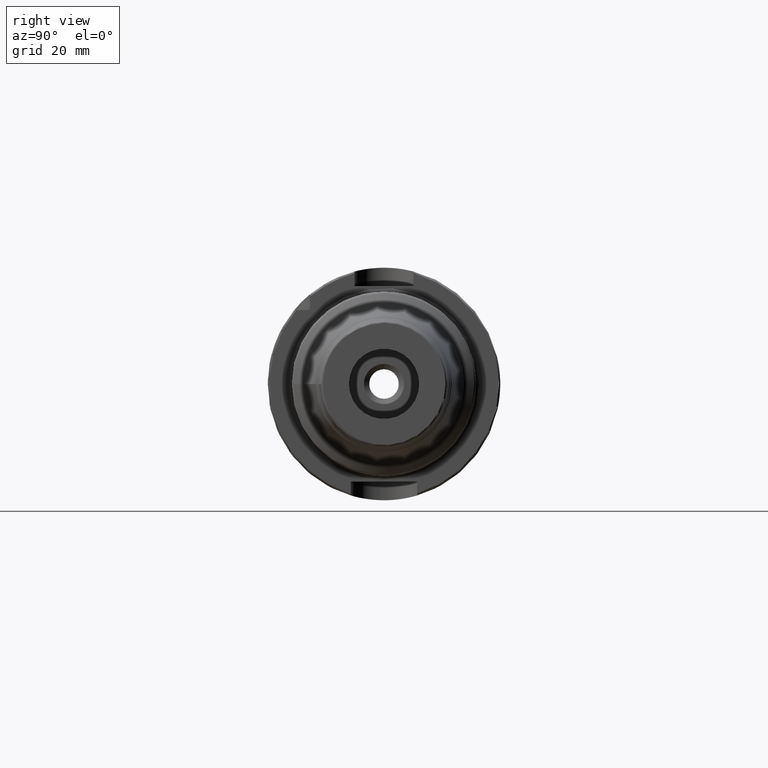
[diagram: clean part render]
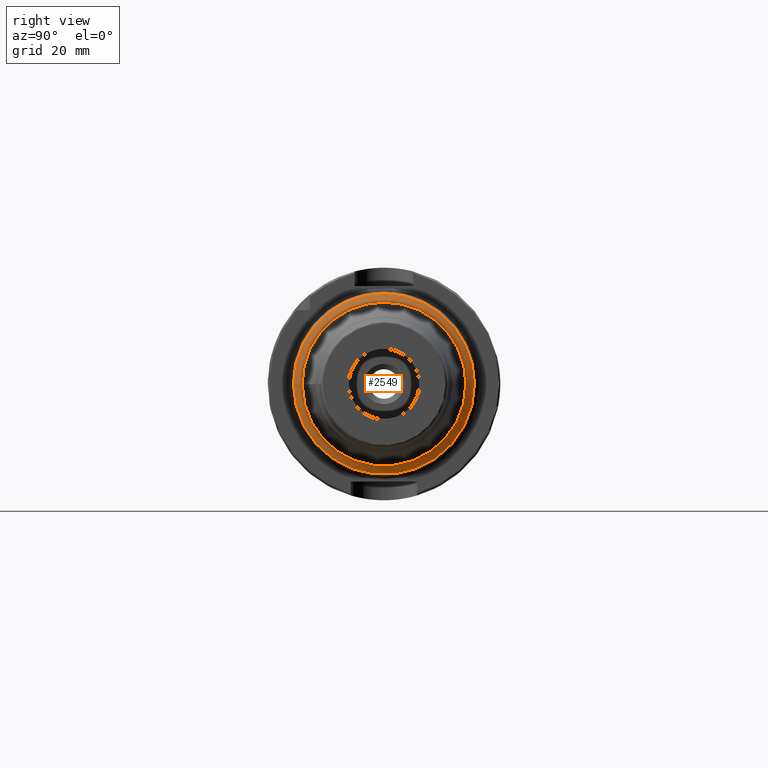
[diagram: same view with one face highlighted and labeled with its STEP entity id]
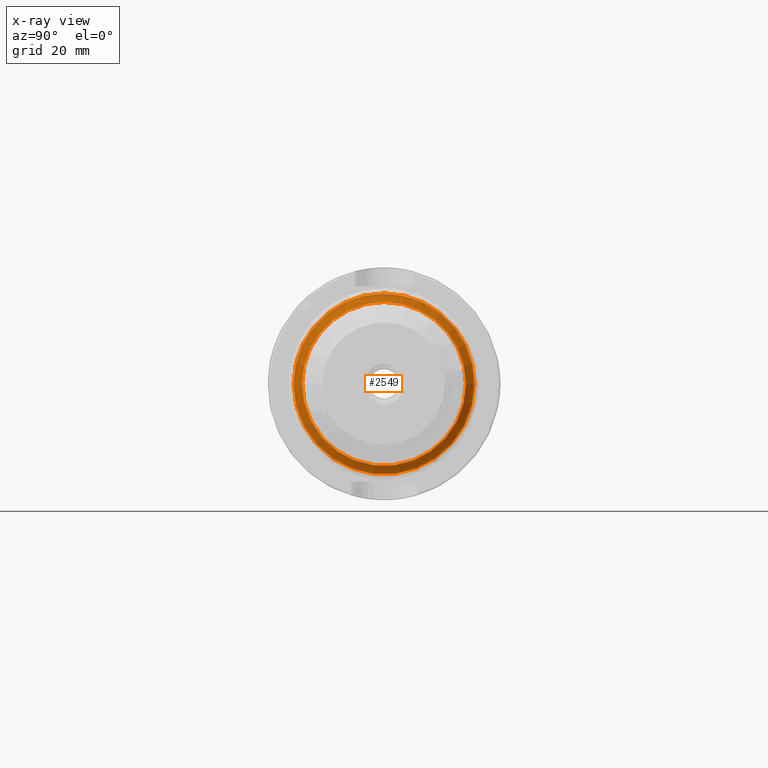
[diagram: x-ray of the same camera — body ghosted, the highlighted face saturated]
A machine part, right view. The second image highlights one B-rep face of the part: STEP entity #2549.
The next image is the same camera in x-ray: the body ghosted, the highlighted face saturated — about 0% of this face is hidden behind the body in this view.
In plain terms, the highlighted conical surface has half-angle 60 deg.
Its self-contained STEP definition (entity closure, byte-faithful):
#240=FACE_OUTER_BOUND('',#376,.T.);
#376=EDGE_LOOP('',(#1836,#1837,#1838,#1839,#1840,#1841,#1842,#1843));
#510=LINE('',#4073,#627);
#627=VECTOR('',#3262,23.3583500677369);
#806=CIRCLE('',#2778,22.1869135644902);
#808=CIRCLE('',#2780,22.1869135644902);
#809=CIRCLE('',#2781,22.1869135644902);
#810=CIRCLE('',#2783,24.5);
#811=CIRCLE('',#2784,24.5);
#812=CIRCLE('',#2785,24.5);
#1019=VERTEX_POINT('',#4064);
#1020=VERTEX_POINT('',#4065);
#1021=VERTEX_POINT('',#4068);
#1022=VERTEX_POINT('',#4072);
#1023=VERTEX_POINT('',#4074);
#1024=VERTEX_POINT('',#4076);
#1331=EDGE_CURVE('',#1019,#1020,#806,.T.);
#1333=EDGE_CURVE('',#1020,#1021,#808,.T.);
#1334=EDGE_CURVE('',#1021,#1019,#809,.T.);
#1335=EDGE_CURVE('',#1021,#1022,#510,.T.);
#1336=EDGE_CURVE('',#1023,#1022,#810,.T.);
#1337=EDGE_CURVE('',#1024,#1023,#811,.T.);
#1338=EDGE_CURVE('',#1022,#1024,#812,.T.);
#1836=ORIENTED_EDGE('',*,*,#1331,.F.);
#1837=ORIENTED_EDGE('',*,*,#1334,.F.);
#1838=ORIENTED_EDGE('',*,*,#1335,.T.);
#1839=ORIENTED_EDGE('',*,*,#1336,.F.);
#1840=ORIENTED_EDGE('',*,*,#1337,.F.);
#1841=ORIENTED_EDGE('',*,*,#1338,.F.);
#1842=ORIENTED_EDGE('',*,*,#1335,.F.);
#1843=ORIENTED_EDGE('',*,*,#1333,.F.);
#2512=CONICAL_SURFACE('',#2782,23.3583500677369,1.0471975511966);
#2549=ADVANCED_FACE('',(#240),#2512,.T.);
#2778=AXIS2_PLACEMENT_3D('',#4066,#3252,#3253);
#2780=AXIS2_PLACEMENT_3D('',#4069,#3256,#3257);
#2781=AXIS2_PLACEMENT_3D('',#4070,#3258,#3259);
#2782=AXIS2_PLACEMENT_3D('',#4071,#3260,#3261);
#2783=AXIS2_PLACEMENT_3D('',#4075,#3263,#3264);
#2784=AXIS2_PLACEMENT_3D('',#4077,#3265,#3266);
#2785=AXIS2_PLACEMENT_3D('',#4078,#3267,#3268);
#3252=DIRECTION('center_axis',(1.,0.,0.));
#3253=DIRECTION('ref_axis',(0.,-1.,3.06161699786838E-17));
#3256=DIRECTION('center_axis',(1.,0.,0.));
#3257=DIRECTION('ref_axis',(0.,-1.,3.06161699786838E-17));
#3258=DIRECTION('center_axis',(1.,0.,0.));
#3259=DIRECTION('ref_axis',(0.,-1.,3.06161699786838E-17));
#3260=DIRECTION('center_axis',(-1.,0.,0.));
#3261=DIRECTION('ref_axis',(0.,1.,0.));
#3262=DIRECTION('',(-0.500000000000001,-0.866025403784438,-1.06057523872491E-16));
#3263=DIRECTION('center_axis',(-1.,0.,0.));
#3264=DIRECTION('ref_axis',(0.,-1.,3.06161699786838E-17));
#3265=DIRECTION('center_axis',(-1.,0.,0.));
#3266=DIRECTION('ref_axis',(0.,-1.,3.06161699786838E-17));
#3267=DIRECTION('center_axis',(-1.,0.,0.));
#3268=DIRECTION('ref_axis',(0.,-1.,3.06161699786838E-17));
#4064=CARTESIAN_POINT('',(54.7285221501808,22.1869135644902,-1.35855663398559E-15));
#4065=CARTESIAN_POINT('',(54.7285221501808,-2.71711326797119E-15,22.1869135644901));
#4066=CARTESIAN_POINT('Origin',(54.7285221501808,0.,-3.39639158496398E-15));
#4068=CARTESIAN_POINT('',(54.7285221501808,-22.1869135644901,-2.71711326797118E-15));
#4069=CARTESIAN_POINT('Origin',(54.7285221501808,0.,-3.39639158496398E-15));
#4070=CARTESIAN_POINT('Origin',(54.7285221501808,0.,-3.39639158496398E-15));
#4071=CARTESIAN_POINT('Origin',(54.0521929696927,0.,0.));
#4072=CARTESIAN_POINT('',(53.3930610739803,-24.5,-3.00038465791102E-15));
#4073=CARTESIAN_POINT('',(54.0521929696927,-23.3583500677369,-2.86057286438173E-15));
#4074=CARTESIAN_POINT('',(53.3930610739803,24.5,-7.50096164477754E-15));
#4075=CARTESIAN_POINT('Origin',(53.3930610739803,0.,-3.75048082238877E-15));
#4076=CARTESIAN_POINT('',(53.3930610739803,-3.00038465791102E-15,24.5));
#4077=CARTESIAN_POINT('Origin',(53.3930610739803,0.,-3.75048082238877E-15));
#4078=CARTESIAN_POINT('Origin',(53.3930610739803,0.,-3.75048082238877E-15));